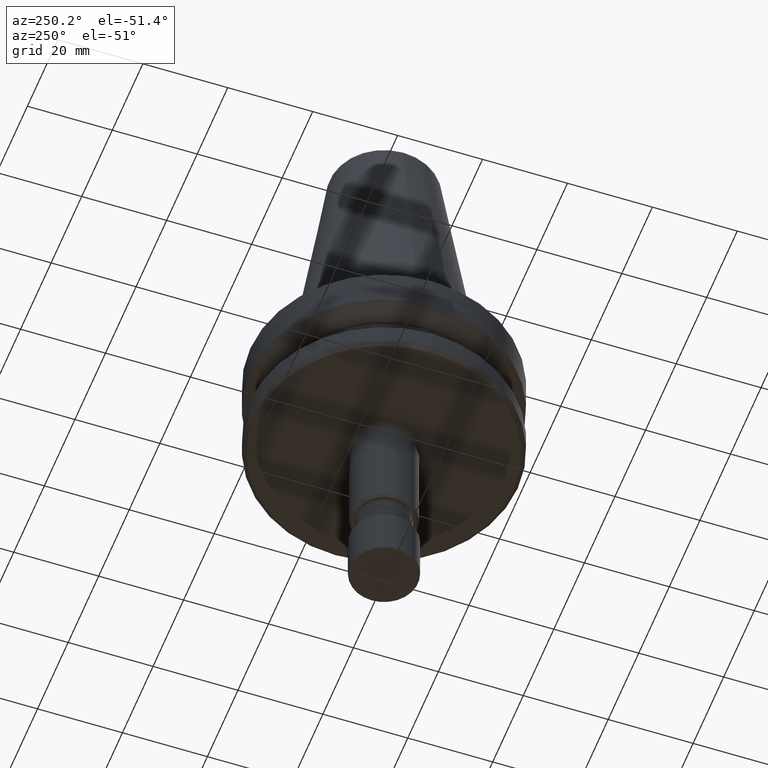
[diagram: clean part render]
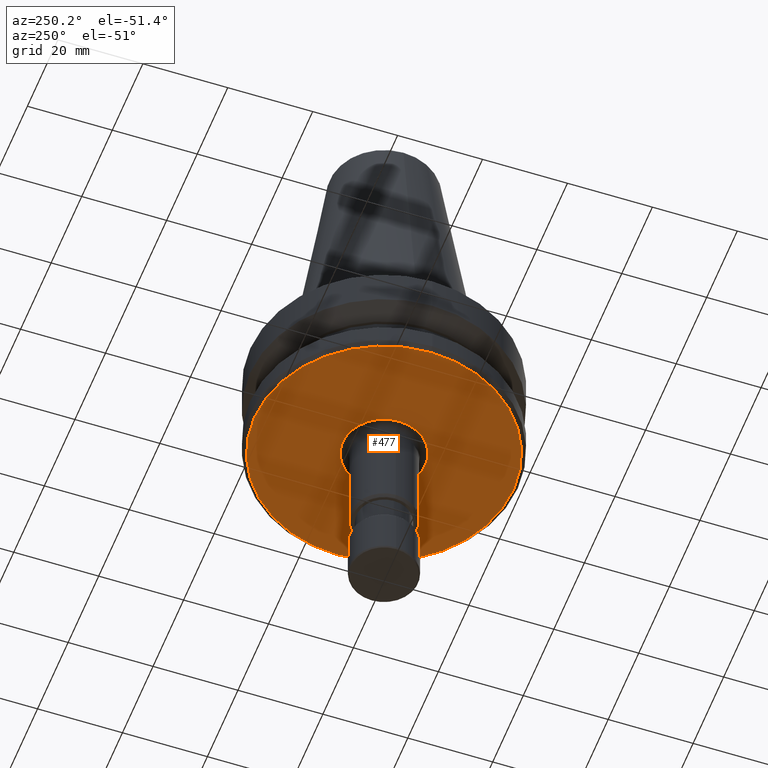
[diagram: same view with one face highlighted and labeled with its STEP entity id]
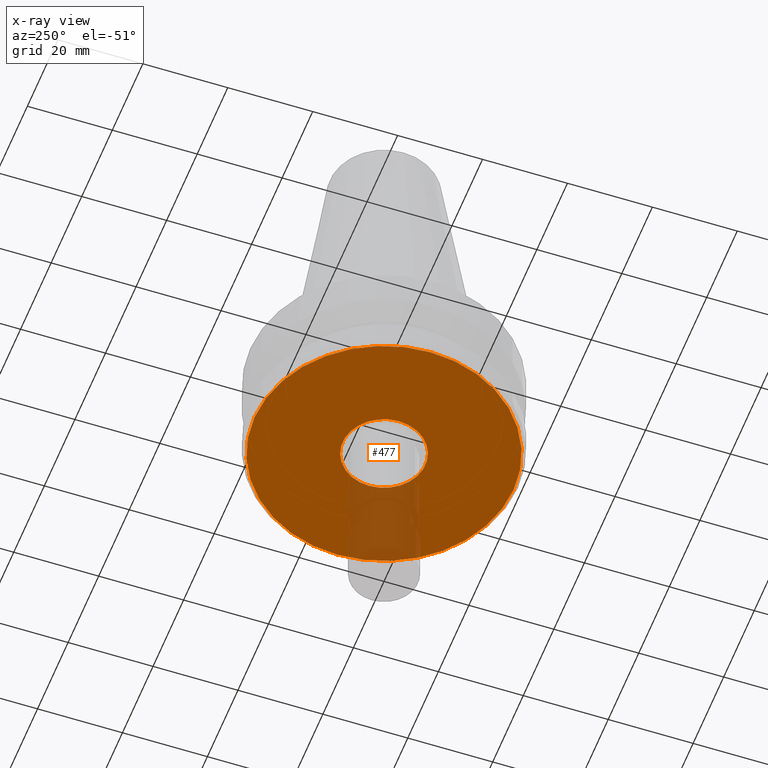
[diagram: x-ray of the same camera — body ghosted, the highlighted face saturated]
A machine part, auxiliary view. The second image highlights one B-rep face of the part: STEP entity #477.
The next image is the same camera in x-ray: the body ghosted, the highlighted face saturated — about 13% of this face is hidden behind the body in this view.
In plain terms, the highlighted planar face has unit normal (0, -0, 1).
Its self-contained STEP definition (entity closure, byte-faithful):
#1 = AXIS2_PLACEMENT_3D ( 'NONE', #732, #1241, #629 ) ;
#3 = CIRCLE ( 'NONE', #267, 30.50000000000041600 ) ;
#136 = CARTESIAN_POINT ( 'NONE',  ( -30.50000000000041600, 3.796405077356825100E-015, -26.99999999999946700 ) ) ;
#209 = VERTEX_POINT ( 'NONE', #316 ) ;
#214 = VERTEX_POINT ( 'NONE', #816 ) ;
#228 = VERTEX_POINT ( 'NONE', #1107 ) ;
#267 = AXIS2_PLACEMENT_3D ( 'NONE', #382, #1081, #480 ) ;
#316 = CARTESIAN_POINT ( 'NONE',  ( -9.750000000000369500, 1.194030629168714600E-015, -26.99999999999930400 ) ) ;
#321 = FACE_OUTER_BOUND ( 'NONE', #515, .T. ) ;
#332 = PLANE ( 'NONE',  #1 ) ;
#336 = CIRCLE ( 'NONE', #606, 30.50000000000041600 ) ;
#382 = CARTESIAN_POINT ( 'NONE',  ( 0.0000000000000000000, 0.0000000000000000000, -26.99999999999946700 ) ) ;
#403 = DIRECTION ( 'NONE',  ( -0.0000000000000000000, -0.0000000000000000000, 1.000000000000000000 ) ) ;
#419 = FACE_BOUND ( 'NONE', #897, .T. ) ;
#420 = EDGE_CURVE ( 'NONE', #214, #209, #1152, .T. ) ;
#477 = ADVANCED_FACE ( 'NONE', ( #321, #419 ), #332, .F. ) ;
#480 = DIRECTION ( 'NONE',  ( 1.000000000000000000, 0.0000000000000000000, 0.0000000000000000000 ) ) ;
#488 = CARTESIAN_POINT ( 'NONE',  ( 0.0000000000000000000, 0.0000000000000000000, -26.99999999999930400 ) ) ;
#515 = EDGE_LOOP ( 'NONE', ( #747, #1134 ) ) ;
#571 = AXIS2_PLACEMENT_3D ( 'NONE', #1003, #403, #1106 ) ;
#573 = CARTESIAN_POINT ( 'NONE',  ( 0.0000000000000000000, 0.0000000000000000000, -26.99999999999946700 ) ) ;
#574 = DIRECTION ( 'NONE',  ( 1.000000000000000000, 0.0000000000000000000, 0.0000000000000000000 ) ) ;
#606 = AXIS2_PLACEMENT_3D ( 'NONE', #573, #1289, #683 ) ;
#629 = DIRECTION ( 'NONE',  ( 1.000000000000000000, 0.0000000000000000000, 0.0000000000000000000 ) ) ;
#680 = CIRCLE ( 'NONE', #964, 9.750000000000369500 ) ;
#683 = DIRECTION ( 'NONE',  ( 1.000000000000000000, 0.0000000000000000000, 0.0000000000000000000 ) ) ;
#711 = EDGE_CURVE ( 'NONE', #209, #214, #680, .T. ) ;
#732 = CARTESIAN_POINT ( 'NONE',  ( 0.0000000000000000000, 9.750000000000369500, -26.99999999999938500 ) ) ;
#747 = ORIENTED_EDGE ( 'NONE', *, *, #1013, .F. ) ;
#769 = ORIENTED_EDGE ( 'NONE', *, *, #711, .T. ) ;
#798 = VERTEX_POINT ( 'NONE', #136 ) ;
#816 = CARTESIAN_POINT ( 'NONE',  ( 9.750000000000369500, 0.0000000000000000000, -26.99999999999930400 ) ) ;
#897 = EDGE_LOOP ( 'NONE', ( #1055, #769 ) ) ;
#964 = AXIS2_PLACEMENT_3D ( 'NONE', #488, #1187, #574 ) ;
#1003 = CARTESIAN_POINT ( 'NONE',  ( 0.0000000000000000000, 0.0000000000000000000, -26.99999999999930400 ) ) ;
#1013 = EDGE_CURVE ( 'NONE', #228, #798, #3, .T. ) ;
#1055 = ORIENTED_EDGE ( 'NONE', *, *, #420, .T. ) ;
#1060 = EDGE_CURVE ( 'NONE', #798, #228, #336, .T. ) ;
#1081 = DIRECTION ( 'NONE',  ( -0.0000000000000000000, -0.0000000000000000000, 1.000000000000000000 ) ) ;
#1106 = DIRECTION ( 'NONE',  ( 1.000000000000000000, 0.0000000000000000000, 0.0000000000000000000 ) ) ;
#1107 = CARTESIAN_POINT ( 'NONE',  ( 30.50000000000041600, 0.0000000000000000000, -26.99999999999946700 ) ) ;
#1134 = ORIENTED_EDGE ( 'NONE', *, *, #1060, .F. ) ;
#1152 = CIRCLE ( 'NONE', #571, 9.750000000000369500 ) ;
#1187 = DIRECTION ( 'NONE',  ( -0.0000000000000000000, -0.0000000000000000000, 1.000000000000000000 ) ) ;
#1241 = DIRECTION ( 'NONE',  ( 0.0000000000000000000, -0.0000000000000000000, 1.000000000000000000 ) ) ;
#1289 = DIRECTION ( 'NONE',  ( -0.0000000000000000000, -0.0000000000000000000, 1.000000000000000000 ) ) ;